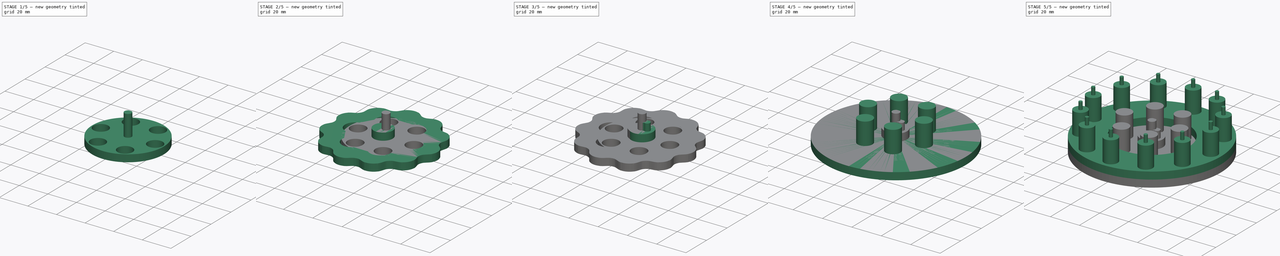
[diagram: build sequence overview — one tinted view per stage of 5, left to right]
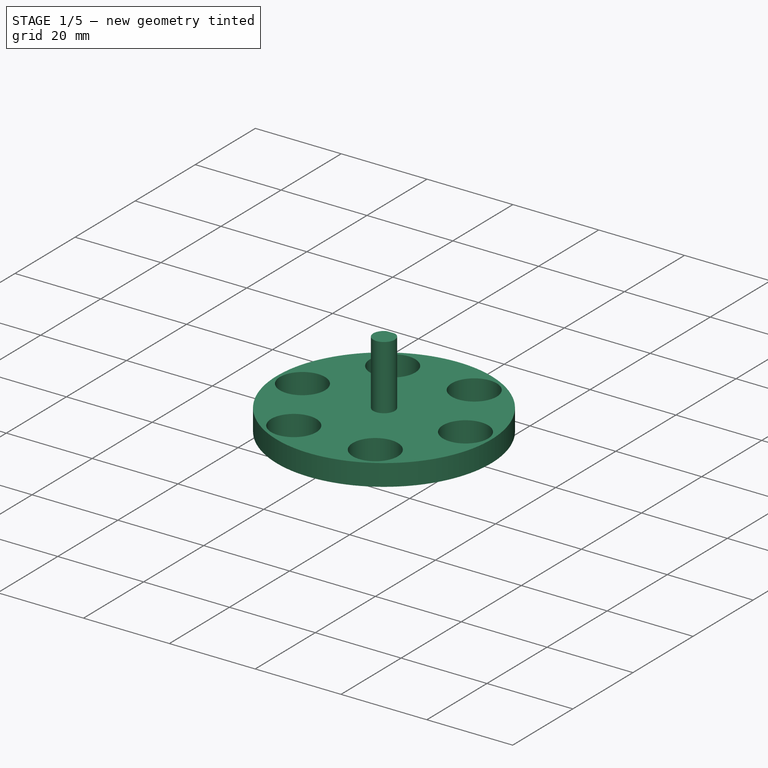
[diagram: stage 1 of 5 — iso view after this stage's code; geometry added in this stage tinted green]
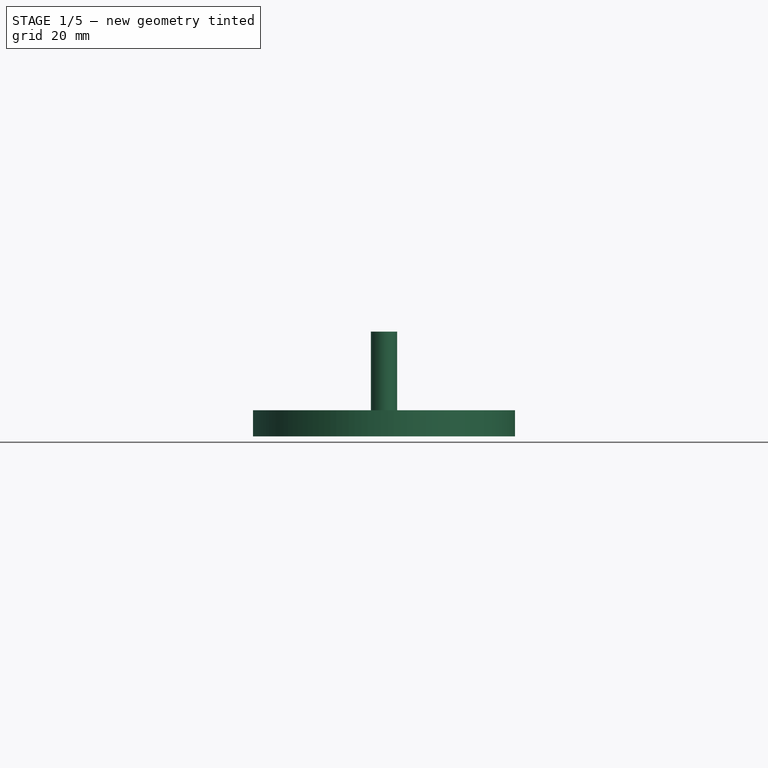
[diagram: stage 1 of 5 — front view after this stage's code; geometry added in this stage tinted green]
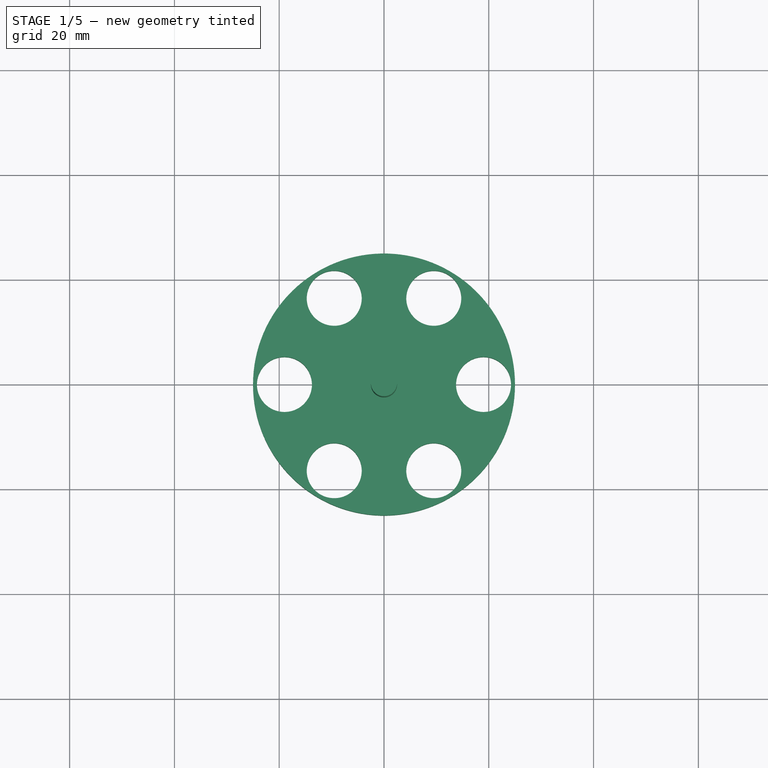
[diagram: stage 1 of 5 — top view after this stage's code; geometry added in this stage tinted green]
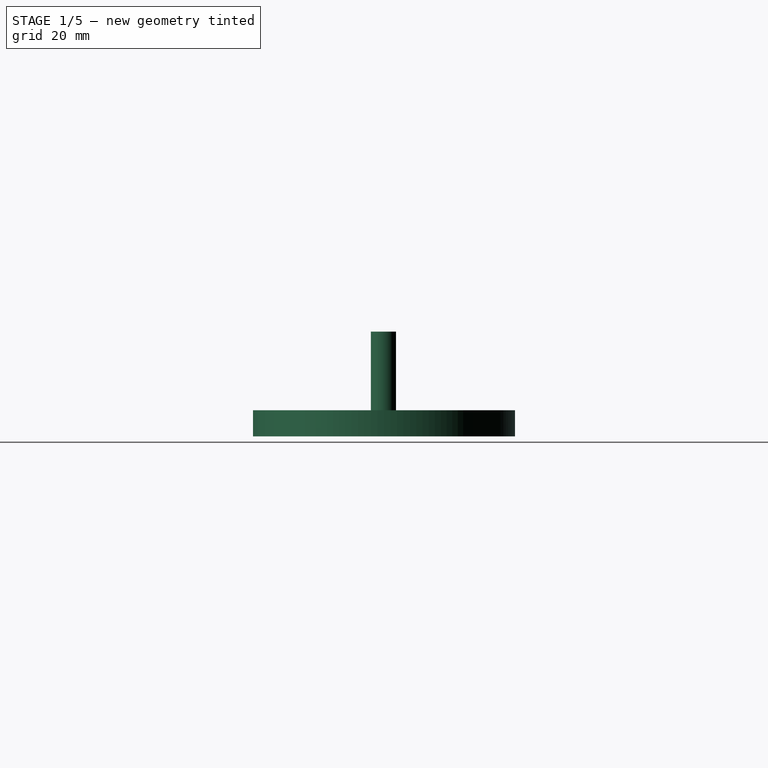
[diagram: stage 1 of 5 — right view after this stage's code; geometry added in this stage tinted green]
FCSTD DOCUMENT  (FreeCAD 0.20R28723 (Git))
Label: CycloidalDrive
License: All rights reserved
LicenseURL: http://en.wikipedia.org/wiki/All_rights_reserved
objects: Sketcher::SketchObject×21, PartDesign::Pad×16, PartDesign::Body×8, PartDesign::Pocket×5, PartDesign::PolarPattern×3, Part::FeaturePython×1
note: 75 computed .brp shape members not serialized (recipe doc carries the construction recipe); baked Part::Feature solids carry a one-line shape summary decoded from their .brp

FEATURE [PartDesign::Body] cycloidalDisk2
  Group = -> [cycloid002Sketch,cycloid002Pad]
  Origin = -> Origin005
  Placement = pos=(0,0,15) rot=(0,0,1;0rad)
  Tip = -> cycloid002Pad
FEATURE [Sketcher::SketchObject] key1Sketch
  FullyConstrained = true
  MapMode = 5
  Support = -> [XY_Plane006]
  sketch-geometry (1):
    g0: Circle CenterX=2 CenterY=0 CenterZ=0 NormalX=0 NormalY=0 NormalZ=1 AngleXU=0 Radius=6.5
  constraints (3):
    c: DistanceX(g0,g-1) = -2
    c: PointOnObject(g0,g-1)
    c: Diameter(g0) = 13  'Key1'
FEATURE [PartDesign::Pad] keyPadPad
  Direction = (0,0,1)
  Length = 5
  Length2 = 10
  Profile = -> key1Sketch
  Type = 0
FEATURE [PartDesign::Body] eccentricKey
  Group = -> [key1Sketch,keyPadPad,key2Sketch,keyPadPad001,Pin1Sketch001,Pin1Pocket,Pin2Sketch001,Pin2Pocket]
  Origin = -> Origin006
  Placement = pos=(0,0,10) rot=(0,0,1;0rad)
  Tip = -> Pin2Pocket
FEATURE [Sketcher::SketchObject] OutputShaftBaseSketch
  FullyConstrained = true
  MapMode = 5
  Support = -> [XY_Plane007]
  sketch-geometry (1):
    g0: Circle CenterX=0 CenterY=0 CenterZ=0 NormalX=0 NormalY=0 NormalZ=1 AngleXU=0 Radius=25
  constraints (2):
    c: Coincident(g0,g-1)
    c: Diameter(g0) = 50  'Base'
FEATURE [PartDesign::Pad] Pad005
  Direction = (0,0,1)
  Length = 5
  Length2 = 10
  Profile = -> OutputShaftBaseSketch
  Type = 0
FEATURE [Sketcher::SketchObject] holesSketch
  FullyConstrained = true
  MapMode = 5
  Support = -> [XY_Plane007]
  sketch-geometry (1):
    g0: Circle CenterX=-19 CenterY=0 CenterZ=0 NormalX=0 NormalY=0 NormalZ=1 AngleXU=0 Radius=5.25
  constraints (3):
    c: DistanceX(g0,g-1) = 19
    c: PointOnObject(g0,g-1)
    c: Diameter(g0) = 10.5  'DriverHoles'
FEATURE [PartDesign::Pocket] Pocket
  BaseFeature = -> Pad005
  Direction = (0,0,-1)
  Length = 5
  Length2 = 5
  Profile = -> holesSketch
  Reversed = true
  Type = 0
FEATURE [Sketcher::SketchObject] InputKeySketch001
  FullyConstrained = true
  MapMode = 5
  Support = -> [XY_Plane007]
  sketch-geometry (2):
    g0: ArcOfCircle CenterX=0 CenterY=0 CenterZ=0 NormalX=0 NormalY=0 NormalZ=1 AngleXU=0 Radius=2.5 StartAngle=1.97351 EndAngle=7.45127
    g1: LineSegment StartX=-0.979796 StartY=2.3 StartZ=0 EndX=0.979796 EndY=2.3 EndZ=0
  constraints (6):
    c: Coincident(g0,g-1)
    c: Radius(g0) = 2.5
    c: Coincident(g1,g0)
    c: Coincident(g1,g0)
    c: Horizontal(g1)
    c: DistanceY(g0,g1) = 2.3
FEATURE [PartDesign::Pad] Pad006
  BaseFeature = -> Pocket
  Direction = (0,0,1)
  Length = 20
  Length2 = 10
  Profile = -> InputKeySketch001
  Type = 0
FEATURE [PartDesign::PolarPattern] DriverHolePolar
  Angle = 360
  Axis = -> holesSketch [N_Axis]
  BaseFeature = -> Pad006
  Occurrences = 6
  Originals = -> [Pocket]
  Overlap = 0
FEATURE [PartDesign::Body] outputShaft
  Group = -> [OutputShaftBaseSketch,Pad005,holesSketch,Pocket,InputKeySketch001,Pad006,DriverHolePolar]
  Origin = -> Origin007
  Placement = pos=(0,0,20) rot=(0,0,1;0rad)
  Tip = -> DriverHolePolar
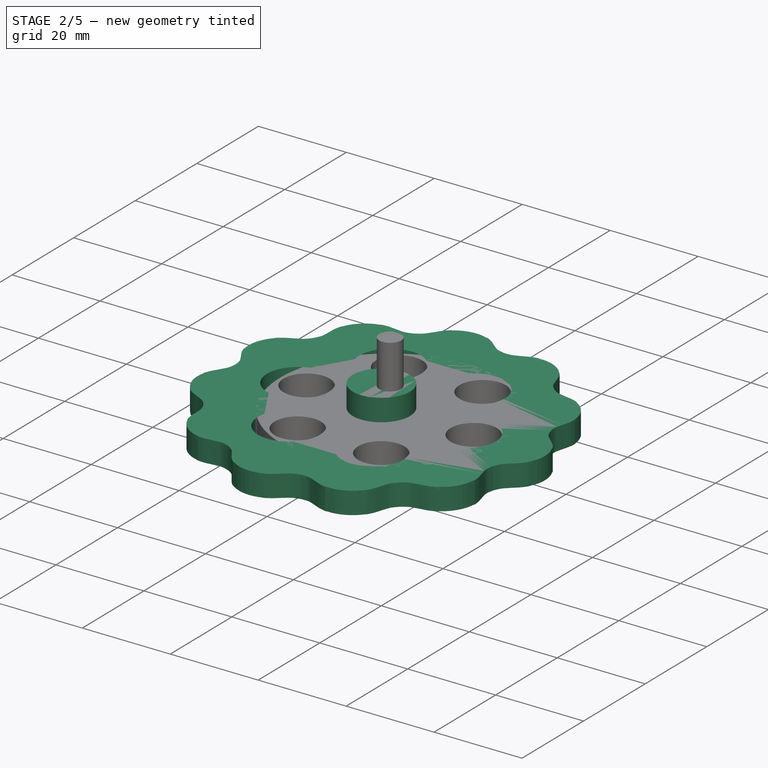
[diagram: stage 2 of 5 — iso view after this stage's code; geometry added in this stage tinted green]
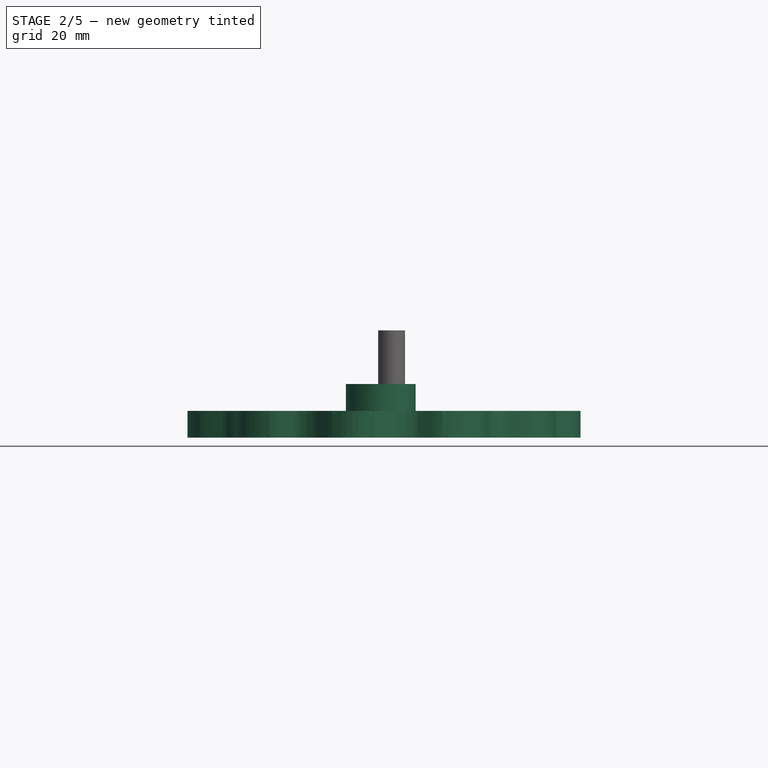
[diagram: stage 2 of 5 — front view after this stage's code; geometry added in this stage tinted green]
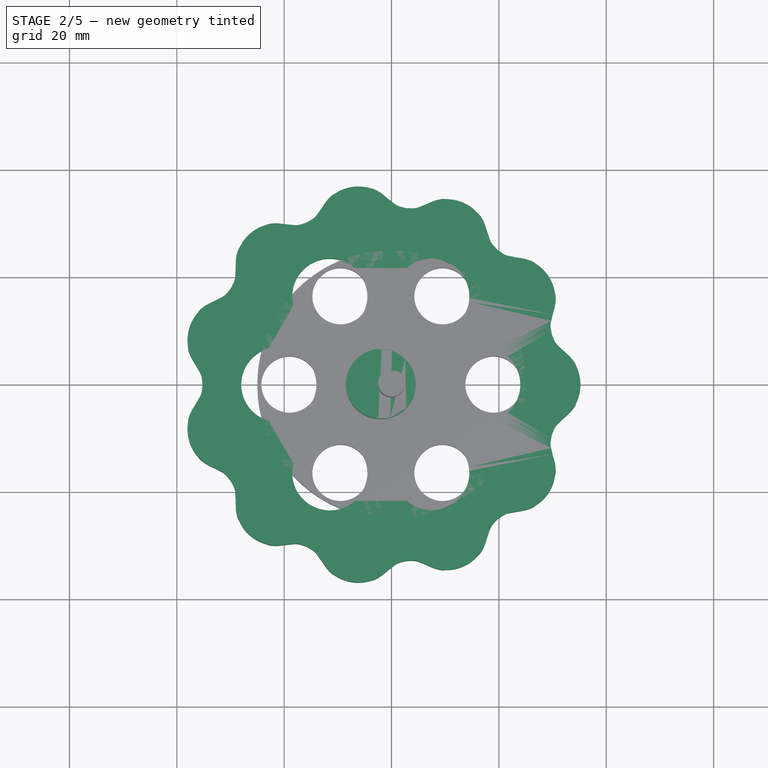
[diagram: stage 2 of 5 — top view after this stage's code; geometry added in this stage tinted green]
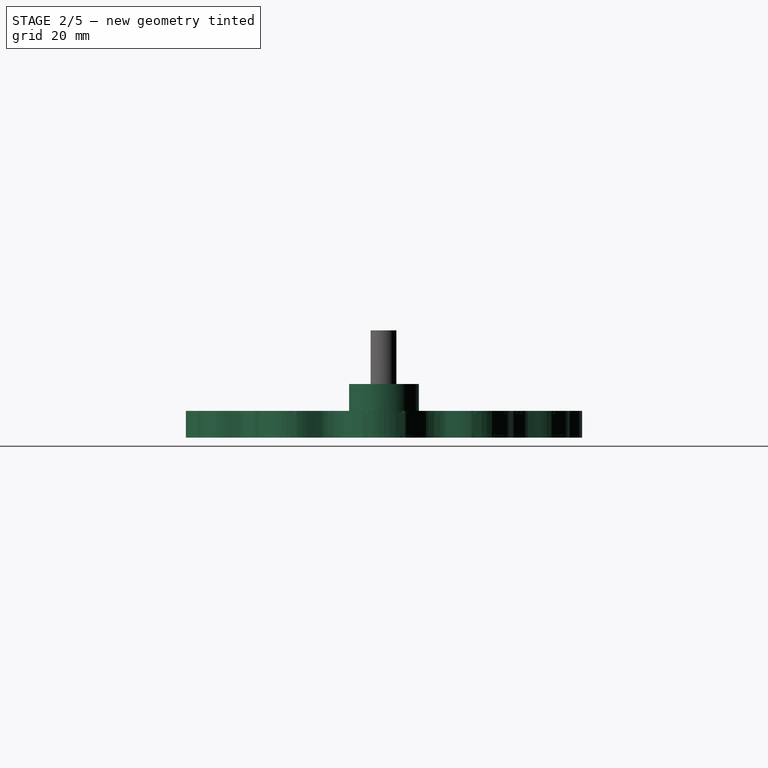
[diagram: stage 2 of 5 — right view after this stage's code; geometry added in this stage tinted green]
FEATURE [PartDesign::Body] inputShaft
  Group = -> [ShaftSketch,bearingholePad,Shaft1Sketch,shaftabovebasePad,Pin1Sketch,Pin1Pad,Pin2Sketch,Pin2Pad,InputKeySketch,InputKeyPocket]
  Origin = -> Origin003
  Tip = -> InputKeyPocket
FEATURE [Sketcher::SketchObject] cycloid001Sketch
  FullyConstrained = true
  MapMode = 5
  Support = -> [XY_Plane004]
  sketch-geometry (18):
    g0: BSplineCurve PolesCount=45 KnotsCount=43 Degree=3 IsPeriodic=0
    g1: BSplineCurve PolesCount=45 KnotsCount=43 Degree=3 IsPeriodic=0
    g2: BSplineCurve PolesCount=45 KnotsCount=43 Degree=3 IsPeriodic=0
    g3: BSplineCurve PolesCount=45 KnotsCount=43 Degree=3 IsPeriodic=0
    g4: BSplineCurve PolesCount=45 KnotsCount=43 Degree=3 IsPeriodic=0
    g5: BSplineCurve PolesCount=45 KnotsCount=43 Degree=3 IsPeriodic=0
    g6: BSplineCurve PolesCount=45 KnotsCount=43 Degree=3 IsPeriodic=0
    g7: BSplineCurve PolesCount=45 KnotsCount=43 Degree=3 IsPeriodic=0
    g8: BSplineCurve PolesCount=45 KnotsCount=43 Degree=3 IsPeriodic=0
    g9: BSplineCurve PolesCount=45 KnotsCount=43 Degree=3 IsPeriodic=0
    g10: BSplineCurve PolesCount=45 KnotsCount=43 Degree=3 IsPeriodic=0
    g11: Circle CenterX=-2 CenterY=0 CenterZ=0 NormalX=0 NormalY=0 NormalZ=1 AngleXU=0 Radius=6.75
    g12: Circle CenterX=-21 CenterY=0 CenterZ=0 NormalX=0 NormalY=0 NormalZ=1 AngleXU=0 Radius=7
    g13: Circle CenterX=-11.5 CenterY=-16.4545 CenterZ=0 NormalX=0 NormalY=0 NormalZ=1 AngleXU=0 Radius=7
    g14: Circle CenterX=7.5 CenterY=-16.4545 CenterZ=0 NormalX=0 NormalY=0 NormalZ=1 AngleXU=0 Radius=7
    g15: Circle CenterX=17 CenterY=0 CenterZ=0 NormalX=0 NormalY=0 NormalZ=1 AngleXU=0 Radius=7
    g16: Circle CenterX=7.5 CenterY=16.4545 CenterZ=0 NormalX=0 NormalY=0 NormalZ=1 AngleXU=0 Radius=7
    g17: Circle CenterX=-11.5 CenterY=16.4545 CenterZ=0 NormalX=0 NormalY=0 NormalZ=1 AngleXU=0 Radius=7
  constraints (32):
    c: Block(g0)
    c: Block(g1)
    c: Block(g2)
    c: Block(g3)
    c: Block(g4)
    c: Block(g5)
    c: Block(g6)
    c: Block(g7)
    c: Block(g8)
    c: Block(g9)
    c: Block(g10)
    c: DistanceX(g11,g-1) = 2
    c: PointOnObject(g11,g-1)
    c: Diameter(g11) = 13.5  'centerHole'
    c: DistanceX(g12,g-1) = 21
    c: PointOnObject(g12,g-1)
    c: Diameter(g12) = 14
    c: DistanceX(g13,g-1) = 11.5
    c: DistanceY(g13,g-1) = 16.4545
    c: Equal(g12,g13)
    c: DistanceX(g14,g-1) = -7.5
    c: DistanceY(g14,g-1) = 16.4545
    c: Equal(g13,g14)
    c: DistanceX(g15,g-1) = -17
    c: DistanceY(g15,g-1) = 2.3e-15
    c: Equal(g14,g15)
    c: DistanceX(g16,g-1) = -7.5
    c: DistanceY(g16,g-1) = -16.4545
    c: Equal(g15,g16)
    c: DistanceX(g17,g-1) = 11.5
    c: DistanceY(g17,g-1) = -16.4545
    c: Equal(g16,g17)
FEATURE [PartDesign::Pad] cycloid001Pad
  Direction = (0,0,1)
  Length = 5
  Length2 = 10
  Profile = -> cycloid001Sketch
  Type = 0
FEATURE [PartDesign::Body] cycloidalDisk1
  Group = -> [cycloid001Sketch,cycloid001Pad]
  Origin = -> Origin004
  Placement = pos=(0,0,10) rot=(0,0,1;3.12255rad)
  Tip = -> cycloid001Pad
FEATURE [Sketcher::SketchObject] cycloid002Sketch
  FullyConstrained = true
  MapMode = 5
  Support = -> [XY_Plane005]
  sketch-geometry (18):
    g0: BSplineCurve PolesCount=45 KnotsCount=43 Degree=3 IsPeriodic=0
    g1: BSplineCurve PolesCount=45 KnotsCount=43 Degree=3 IsPeriodic=0
    g2: BSplineCurve PolesCount=45 KnotsCount=43 Degree=3 IsPeriodic=0
    g3: BSplineCurve PolesCount=45 KnotsCount=43 Degree=3 IsPeriodic=0
    g4: BSplineCurve PolesCount=45 KnotsCount=43 Degree=3 IsPeriodic=0
    g5: BSplineCurve PolesCount=45 KnotsCount=43 Degree=3 IsPeriodic=0
    g6: BSplineCurve PolesCount=45 KnotsCount=43 Degree=3 IsPeriodic=0
    g7: BSplineCurve PolesCount=45 KnotsCount=43 Degree=3 IsPeriodic=0
    g8: BSplineCurve PolesCount=45 KnotsCount=43 Degree=3 IsPeriodic=0
    g9: BSplineCurve PolesCount=45 KnotsCount=43 Degree=3 IsPeriodic=0
    g10: BSplineCurve PolesCount=45 KnotsCount=43 Degree=3 IsPeriodic=0
    g11: Circle CenterX=-2 CenterY=0 CenterZ=0 NormalX=0 NormalY=0 NormalZ=1 AngleXU=0 Radius=6.75
    g12: Circle CenterX=-21 CenterY=0 CenterZ=0 NormalX=0 NormalY=0 NormalZ=1 AngleXU=0 Radius=7
    g13: Circle CenterX=-11.5 CenterY=-16.4545 CenterZ=0 NormalX=0 NormalY=0 NormalZ=1 AngleXU=0 Radius=7
    g14: Circle CenterX=7.5 CenterY=-16.4545 CenterZ=0 NormalX=0 NormalY=0 NormalZ=1 AngleXU=0 Radius=7
    g15: Circle CenterX=17 CenterY=0 CenterZ=0 NormalX=0 NormalY=0 NormalZ=1 AngleXU=0 Radius=7
    g16: Circle CenterX=7.5 CenterY=16.4545 CenterZ=0 NormalX=0 NormalY=0 NormalZ=1 AngleXU=0 Radius=7
    g17: Circle CenterX=-11.5 CenterY=16.4545 CenterZ=0 NormalX=0 NormalY=0 NormalZ=1 AngleXU=0 Radius=7
  constraints (32):
    c: Block(g0)
    c: Block(g1)
    c: Block(g2)
    c: Block(g3)
    c: Block(g4)
    c: Block(g5)
    c: Block(g6)
    c: Block(g7)
    c: Block(g8)
    c: Block(g9)
    c: Block(g10)
    c: DistanceX(g11,g-1) = 2
    c: PointOnObject(g11,g-1)
    c: Diameter(g11) = 13.5  'centerHole'
    c: DistanceX(g12,g-1) = 21
    c: PointOnObject(g12,g-1)
    c: Diameter(g12) = 14
    c: DistanceX(g13,g-1) = 11.5
    c: DistanceY(g13,g-1) = 16.4545
    c: Equal(g12,g13)
    c: DistanceX(g14,g-1) = -7.5
    c: DistanceY(g14,g-1) = 16.4545
    c: Equal(g13,g14)
    c: DistanceX(g15,g-1) = -17
    c: DistanceY(g15,g-1) = 2.3e-15
    c: Equal(g14,g15)
    c: DistanceX(g16,g-1) = -7.5
    c: DistanceY(g16,g-1) = -16.4545
    c: Equal(g15,g16)
    c: DistanceX(g17,g-1) = 11.5
    c: DistanceY(g17,g-1) = -16.4545
    c: Equal(g16,g17)
FEATURE [PartDesign::Pad] cycloid002Pad
  Direction = (0,0,1)
  Length = 5
  Length2 = 10
  Profile = -> cycloid002Sketch
  Type = 0
FEATURE [Sketcher::SketchObject] key2Sketch
  AttachmentOffset = pos=(0,0,5) rot=(0,0,1;0rad)
  FullyConstrained = true
  MapMode = 5
  Placement = pos=(0,0,5) rot=(0,0,1;0rad)
  Support = -> [XY_Plane006]
  sketch-geometry (1):
    g0: Circle CenterX=-2 CenterY=0 CenterZ=0 NormalX=0 NormalY=0 NormalZ=1 AngleXU=0 Radius=6.5
  constraints (3):
    c: DistanceX(g0,g-1) = 2
    c: PointOnObject(g0,g-1)
    c: Diameter(g0) = 13  'Key1'
FEATURE [PartDesign::Pad] keyPadPad001
  BaseFeature = -> keyPadPad
  Direction = (0,0,1)
  Length = 5
  Length2 = 10
  Profile = -> key2Sketch
  Type = 0
FEATURE [Sketcher::SketchObject] Pin1Sketch001
  AttachmentOffset = pos=(0,0,5) rot=(0,0,1;0rad)
  FullyConstrained = true
  MapMode = 5
  Placement = pos=(0,0,5) rot=(0,0,1;0rad)
  Support = -> [XY_Plane006]
  sketch-geometry (1):
    g0: Circle CenterX=1.75 CenterY=0 CenterZ=0 NormalX=0 NormalY=0 NormalZ=1 AngleXU=0 Radius=2
  constraints (3):
    c: DistanceX(g0,g-1) = -1.75
    c: PointOnObject(g0,g-1)
    c: Diameter(g0) = 4  'pin1'
FEATURE [PartDesign::Pocket] Pin1Pocket
  BaseFeature = -> keyPadPad001
  Direction = (0,0,-1)
  Length = 10
  Length2 = 5
  Profile = -> Pin1Sketch001
  Type = 0
FEATURE [Sketcher::SketchObject] Pin2Sketch001
  AttachmentOffset = pos=(0,0,5) rot=(0,0,1;0rad)
  FullyConstrained = true
  MapMode = 5
  Placement = pos=(0,0,5) rot=(0,0,1;0rad)
  Support = -> [XY_Plane006]
  sketch-geometry (1):
    g0: Circle CenterX=3.5 CenterY=0 CenterZ=0 NormalX=0 NormalY=0 NormalZ=1 AngleXU=0 Radius=2
  constraints (3):
    c: DistanceX(g0,g-1) = -3.5
    c: PointOnObject(g0,g-1)
    c: Diameter(g0) = 4  'pin2'
FEATURE [PartDesign::Pocket] Pin2Pocket
  BaseFeature = -> Pin1Pocket
  Direction = (0,0,-1)
  Length = 10
  Length2 = 5
  Profile = -> Pin2Sketch001
  Type = 0
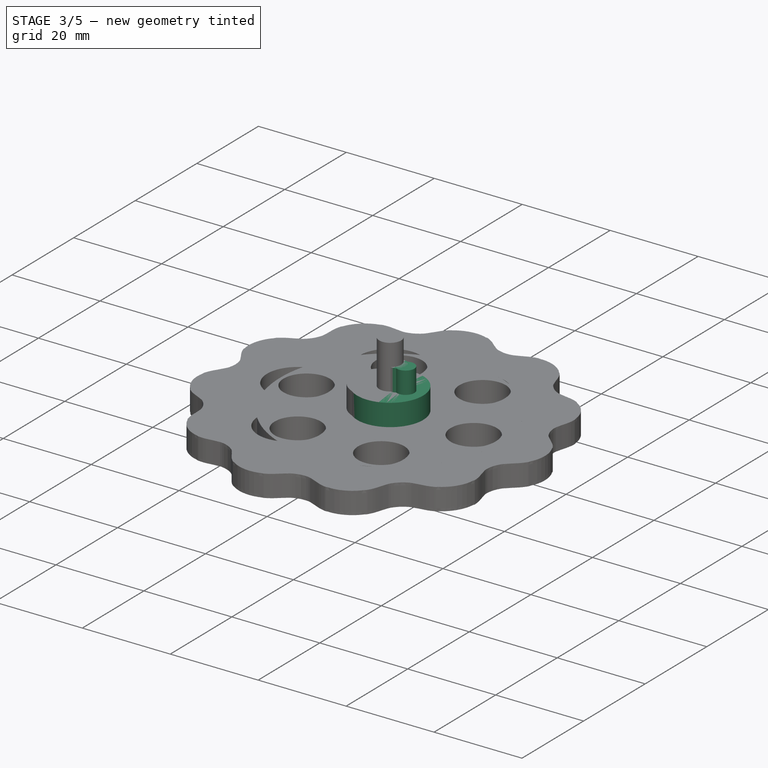
[diagram: stage 3 of 5 — iso view after this stage's code; geometry added in this stage tinted green]
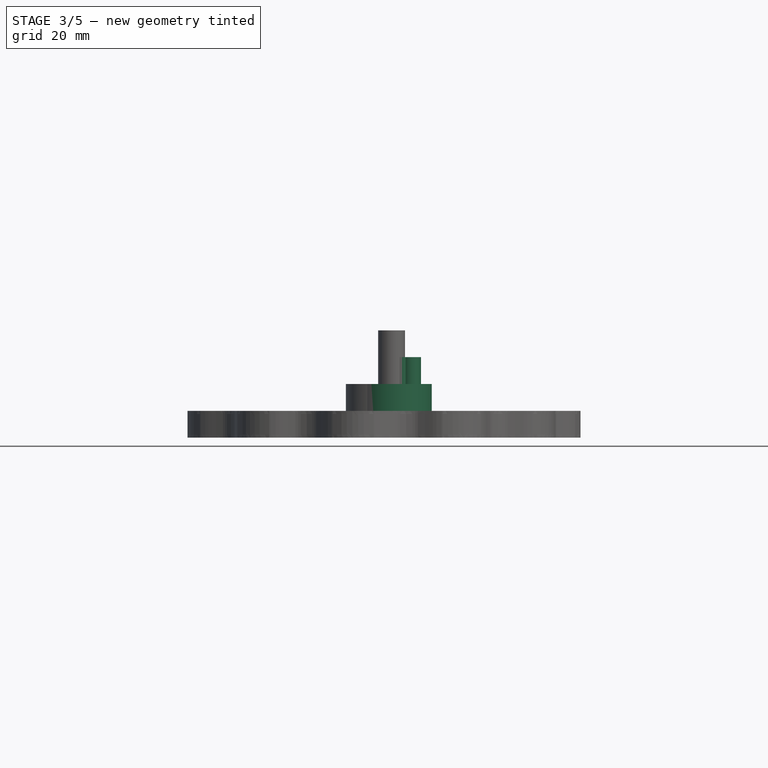
[diagram: stage 3 of 5 — front view after this stage's code; geometry added in this stage tinted green]
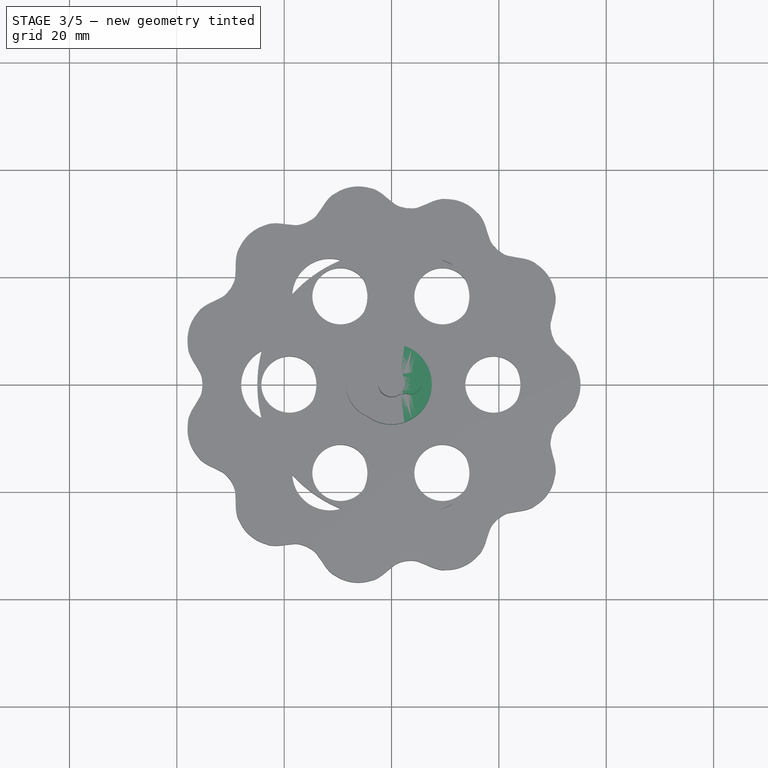
[diagram: stage 3 of 5 — top view after this stage's code; geometry added in this stage tinted green]
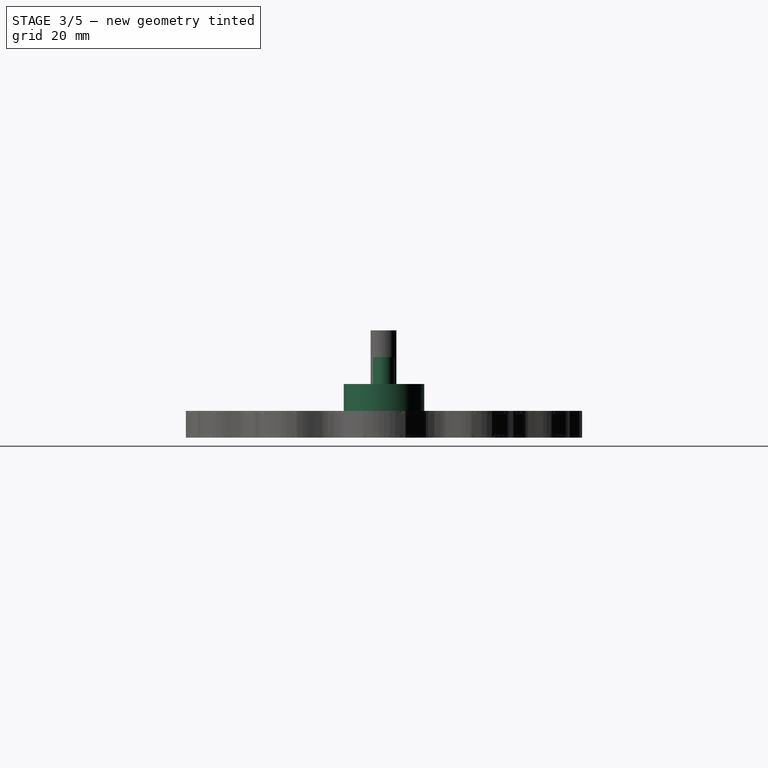
[diagram: stage 3 of 5 — right view after this stage's code; geometry added in this stage tinted green]
FEATURE [PartDesign::Body] driverDisk
  Group = -> [DriverDiskBaseSketch001,Pad,DriverShaftSketch,Pad004,DriverDiskPolar]
  Origin = -> Origin002
  Placement = pos=(0,0,5) rot=(0,0,1;0rad)
  Tip = -> DriverDiskPolar
FEATURE [Sketcher::SketchObject] ShaftSketch
  FullyConstrained = true
  MapMode = 5
  Support = -> [XY_Plane003]
  sketch-geometry (1):
    g0: Circle CenterX=0 CenterY=0 CenterZ=0 NormalX=0 NormalY=0 NormalZ=1 AngleXU=0 Radius=6.5
  constraints (2):
    c: Coincident(g0,g-1)
    c: Diameter(g0) = 13  'Shaft'
FEATURE [PartDesign::Pad] bearingholePad
  Direction = (0,0,1)
  Length = 5
  Length2 = 10
  Profile = -> ShaftSketch
  Type = 0
FEATURE [Sketcher::SketchObject] Shaft1Sketch
  AttachmentOffset = pos=(0,0,5) rot=(0,0,1;0rad)
  FullyConstrained = true
  MapMode = 5
  Placement = pos=(0,0,5) rot=(0,0,1;0rad)
  Support = -> [XY_Plane003]
  sketch-geometry (1):
    g0: Circle CenterX=0 CenterY=0 CenterZ=0 NormalX=0 NormalY=0 NormalZ=1 AngleXU=0 Radius=7.5
  constraints (2):
    c: Coincident(g0,g-1)
    c: Diameter(g0) = 15  'InnerShaft'
FEATURE [PartDesign::Pad] shaftabovebasePad
  BaseFeature = -> bearingholePad
  Direction = (0,0,1)
  Length = 5
  Length2 = 10
  Profile = -> Shaft1Sketch
  Type = 0
FEATURE [Sketcher::SketchObject] Pin1Sketch
  AttachmentOffset = pos=(0,0,5) rot=(0,0,1;0rad)
  FullyConstrained = true
  MapMode = 5
  Placement = pos=(0,0,5) rot=(0,0,1;0rad)
  Support = -> [XY_Plane003]
  sketch-geometry (1):
    g0: Circle CenterX=1.75 CenterY=0 CenterZ=0 NormalX=0 NormalY=0 NormalZ=1 AngleXU=0 Radius=2
  constraints (3):
    c: DistanceX(g0,g-1) = -1.75
    c: PointOnObject(g0,g-1)
    c: Diameter(g0) = 4  'pin1'
FEATURE [PartDesign::Pad] Pin1Pad
  BaseFeature = -> shaftabovebasePad
  Direction = (0,0,1)
  Length = 10
  Length2 = 10
  Profile = -> Pin1Sketch
  Type = 0
FEATURE [Sketcher::SketchObject] Pin2Sketch
  AttachmentOffset = pos=(0,0,5) rot=(0,0,1;0rad)
  FullyConstrained = true
  MapMode = 5
  Placement = pos=(0,0,5) rot=(0,0,1;0rad)
  Support = -> [XY_Plane003]
  sketch-geometry (1):
    g0: Circle CenterX=3.5 CenterY=0 CenterZ=0 NormalX=0 NormalY=0 NormalZ=1 AngleXU=0 Radius=2
  constraints (3):
    c: DistanceX(g0,g-1) = -3.5
    c: PointOnObject(g0,g-1)
    c: Diameter(g0) = 4  'pin2'
FEATURE [PartDesign::Pad] Pin2Pad
  BaseFeature = -> Pin1Pad
  Direction = (0,0,1)
  Length = 10
  Length2 = 10
  Profile = -> Pin2Sketch
  Type = 0
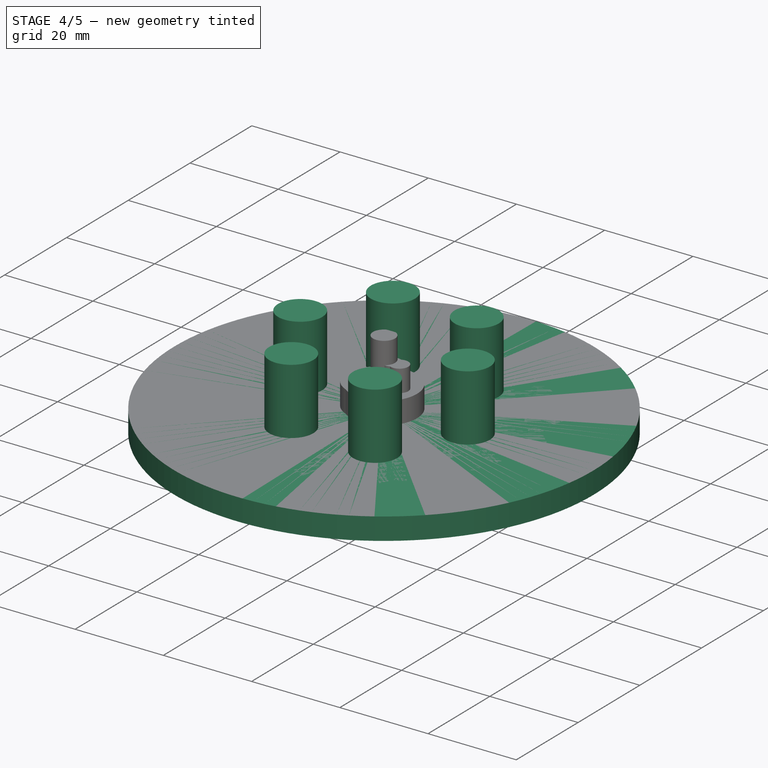
[diagram: stage 4 of 5 — iso view after this stage's code; geometry added in this stage tinted green]
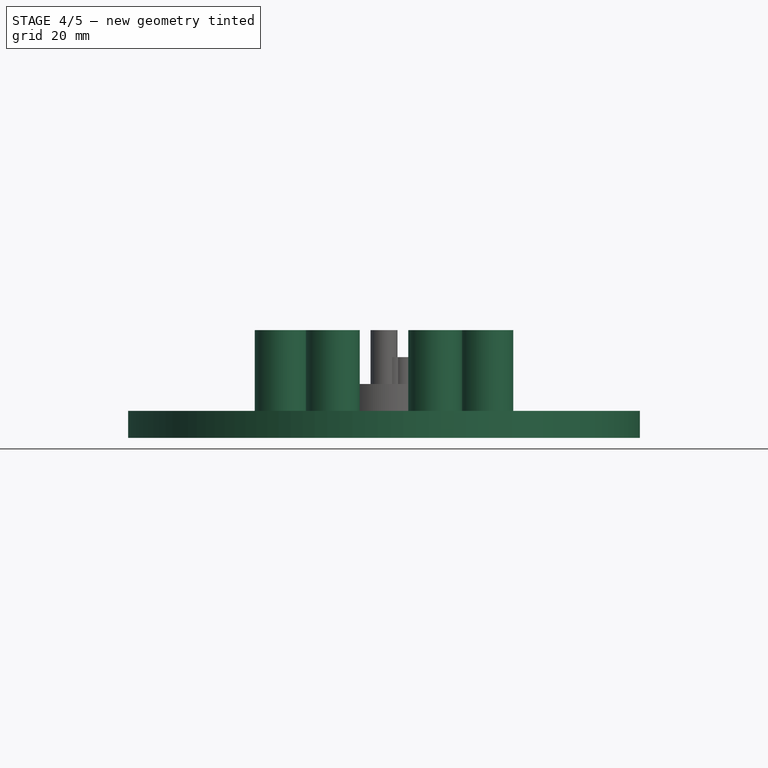
[diagram: stage 4 of 5 — front view after this stage's code; geometry added in this stage tinted green]
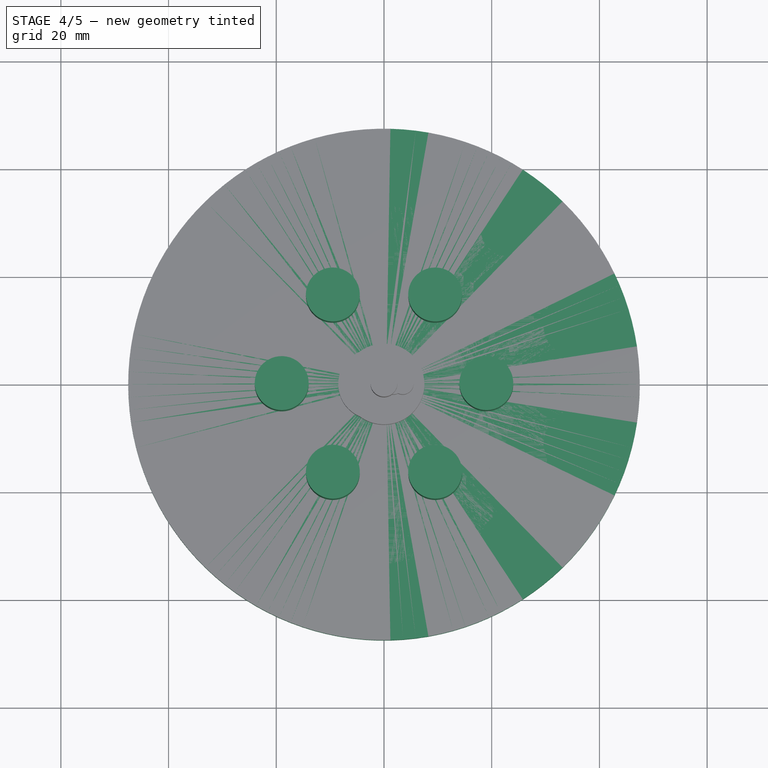
[diagram: stage 4 of 5 — top view after this stage's code; geometry added in this stage tinted green]
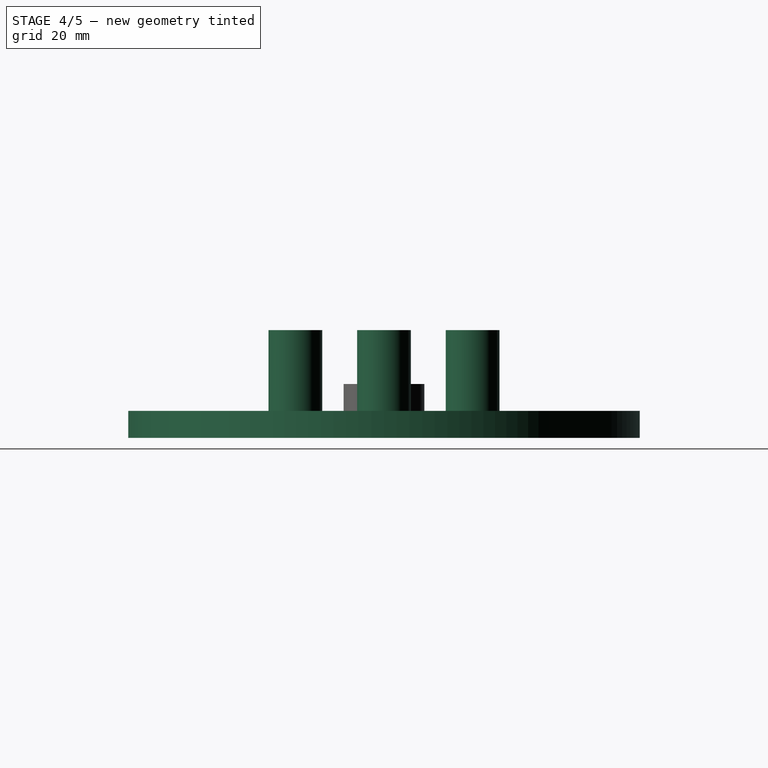
[diagram: stage 4 of 5 — right view after this stage's code; geometry added in this stage tinted green]
FEATURE [PartDesign::Body] gear_box
  Origin = -> Origin
FEATURE [Part::FeaturePython] GearBoxParameters  # WARN: FeaturePython — macro-defined, semantics opaque (R4)
  Diameter = 95
  Height = 20
  Max_Diameter = 73.1555
  Min_Diameter = 67.8178
  Version = Mar 5,2022
  base_height = 10
  clearance = 0.5
  disk_height = 5
  driver_disk_diameter = 50
  driver_disk_hole_count = 6
  driver_hole_diameter = 10
  eccentricity = 2
  key_diameter = 5
  key_flat_diameter = 4.8
  line_segment_count = 42
  pin_circle_diameter = 80
  pressure_angle_limit = 50
  pressure_angle_offset = 0.1
  roller_diameter = 9.4
  shaft_diameter = 13
  tooth_count = 11
  tooth_pitch = 4
FEATURE [Sketcher::SketchObject] DriverDiskBaseSketch
  FullyConstrained = true
  MapMode = 5
  Support = -> [XY_Plane001]
  sketch-geometry (2):
    g0: Circle CenterX=0 CenterY=0 CenterZ=0 NormalX=0 NormalY=0 NormalZ=1 AngleXU=0 Radius=6.75
    g1: Circle CenterX=0 CenterY=0 CenterZ=0 NormalX=0 NormalY=0 NormalZ=1 AngleXU=0 Radius=47.5
  constraints (4):
    c: Coincident(g0,g-1)
    c: Diameter(g0) = 13.5  'ShaftHole'
    c: Coincident(g1,g-1)
    c: Diameter(g1) = 95  'Diameter'
FEATURE [PartDesign::Pad] centerPad
  Direction = (0,0,1)
  Length = 5
  Length2 = 10
  Profile = -> DriverDiskBaseSketch
  Type = 0
FEATURE [PartDesign::Body] pinDisk
  Group = -> [DriverDiskBaseSketch,centerPad,Sketch,outsidePad,pinMaleSketch,pinMalePad,rollerSketch,RollerPad,pinSketchFemaleSketch,pinJoinerPocket,pinPolar]
  Origin = -> Origin001
  Tip = -> pinPolar
FEATURE [Sketcher::SketchObject] DriverDiskBaseSketch001
  FullyConstrained = true
  MapMode = 5
  Support = -> [XY_Plane002]
  sketch-geometry (2):
    g0: Circle CenterX=0 CenterY=0 CenterZ=0 NormalX=0 NormalY=0 NormalZ=1 AngleXU=0 Radius=25
    g1: Circle CenterX=0 CenterY=0 CenterZ=0 NormalX=0 NormalY=0 NormalZ=1 AngleXU=0 Radius=7.625
  constraints (4):
    c: Coincident(g0,g-1)
    c: Diameter(g0) = 50  'DriverDiameter'
    c: Coincident(g1,g-1)
    c: Diameter(g1) = 15.25  'ShaftHole'
FEATURE [PartDesign::Pad] Pad
  Direction = (0,0,1)
  Length = 5
  Length2 = 10
  Profile = -> DriverDiskBaseSketch001
  Type = 0
FEATURE [Sketcher::SketchObject] DriverShaftSketch
  FullyConstrained = true
  MapMode = 5
  Support = -> [XY_Plane002]
  sketch-geometry (1):
    g0: Circle CenterX=-19 CenterY=0 CenterZ=0 NormalX=0 NormalY=0 NormalZ=1 AngleXU=0 Radius=5
  constraints (3):
    c: DistanceX(g0,g-1) = 19
    c: PointOnObject(g0,g-1)
    c: Diameter(g0) = 10  'DriverShaft'
FEATURE [PartDesign::Pad] Pad004
  BaseFeature = -> Pad
  Direction = (0,0,1)
  Length = 20
  Length2 = 10
  Profile = -> DriverShaftSketch
  Type = 0
FEATURE [PartDesign::PolarPattern] DriverDiskPolar
  Angle = 360
  Axis = -> DriverShaftSketch [N_Axis]
  BaseFeature = -> Pad004
  Occurrences = 6
  Originals = -> [Pad004]
  Overlap = 0
FEATURE [Sketcher::SketchObject] InputKeySketch
  FullyConstrained = true
  MapMode = 5
  Support = -> [XY_Plane003]
  sketch-geometry (2):
    g0: ArcOfCircle CenterX=0 CenterY=0 CenterZ=0 NormalX=0 NormalY=0 NormalZ=1 AngleXU=0 Radius=2.5 StartAngle=1.97351 EndAngle=7.45127
    g1: LineSegment StartX=-0.979796 StartY=2.3 StartZ=0 EndX=0.979796 EndY=2.3 EndZ=0
  constraints (6):
    c: Coincident(g0,g-1)
    c: Radius(g0) = 2.5
    c: Coincident(g1,g0)
    c: Coincident(g1,g0)
    c: Horizontal(g1)
    c: DistanceY(g0,g1) = 2.3
FEATURE [PartDesign::Pocket] InputKeyPocket
  BaseFeature = -> Pin2Pad
  Direction = (0,0,-1)
  Length = 15
  Length2 = 5
  Profile = -> InputKeySketch
  Reversed = true
  Type = 0
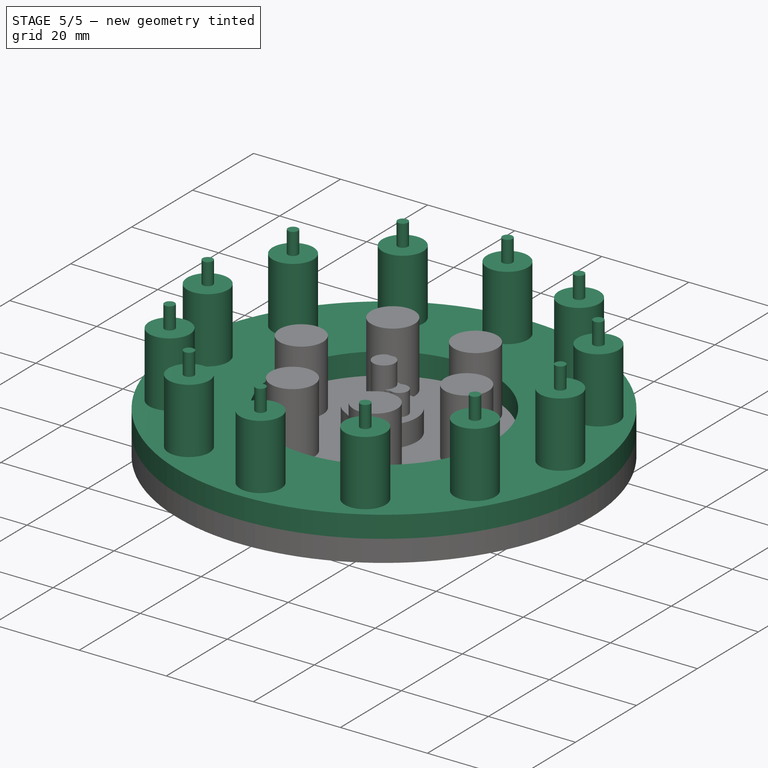
[diagram: stage 5 of 5 — iso view after this stage's code; geometry added in this stage tinted green]
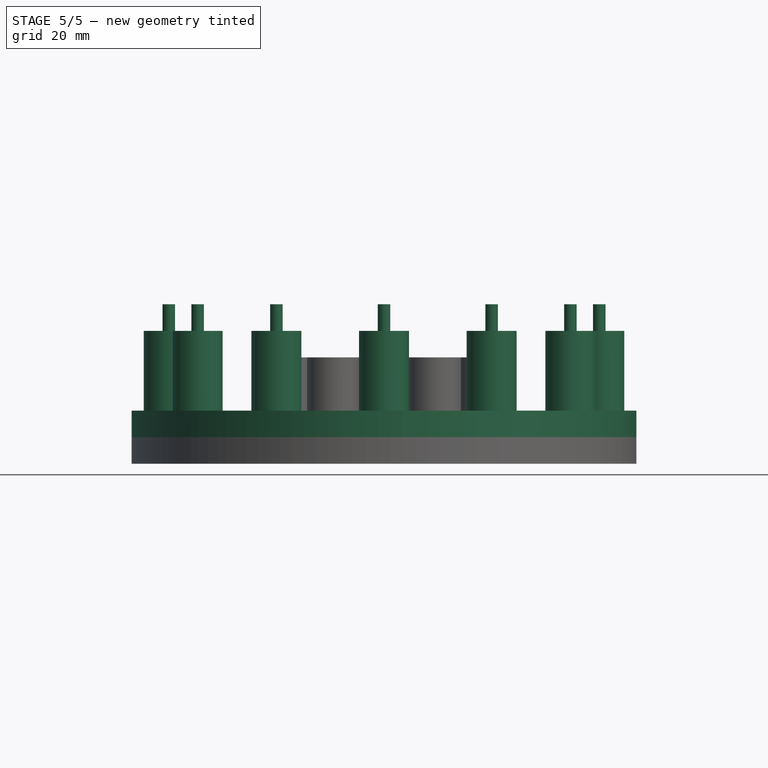
[diagram: stage 5 of 5 — front view after this stage's code; geometry added in this stage tinted green]
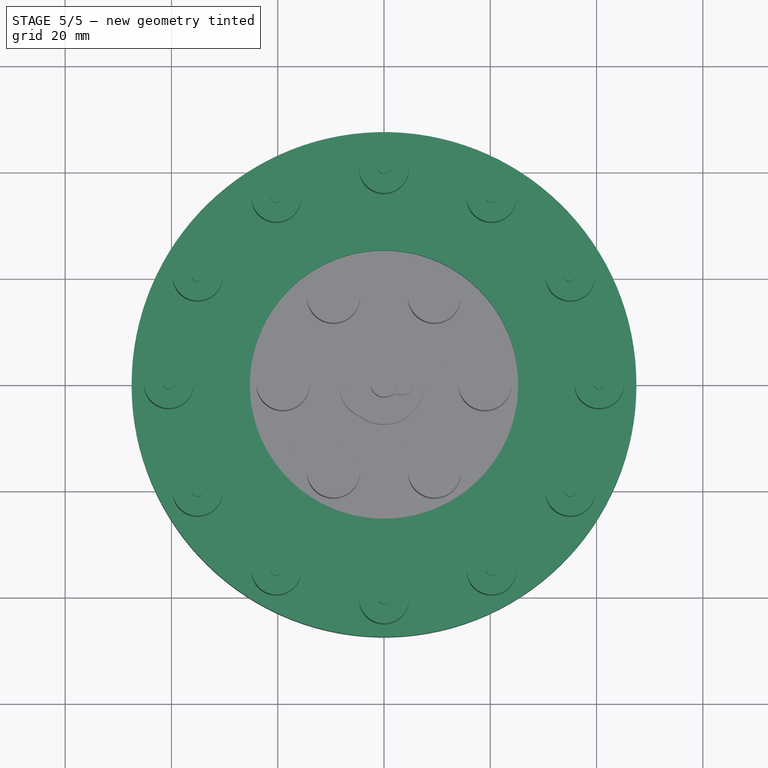
[diagram: stage 5 of 5 — top view after this stage's code; geometry added in this stage tinted green]
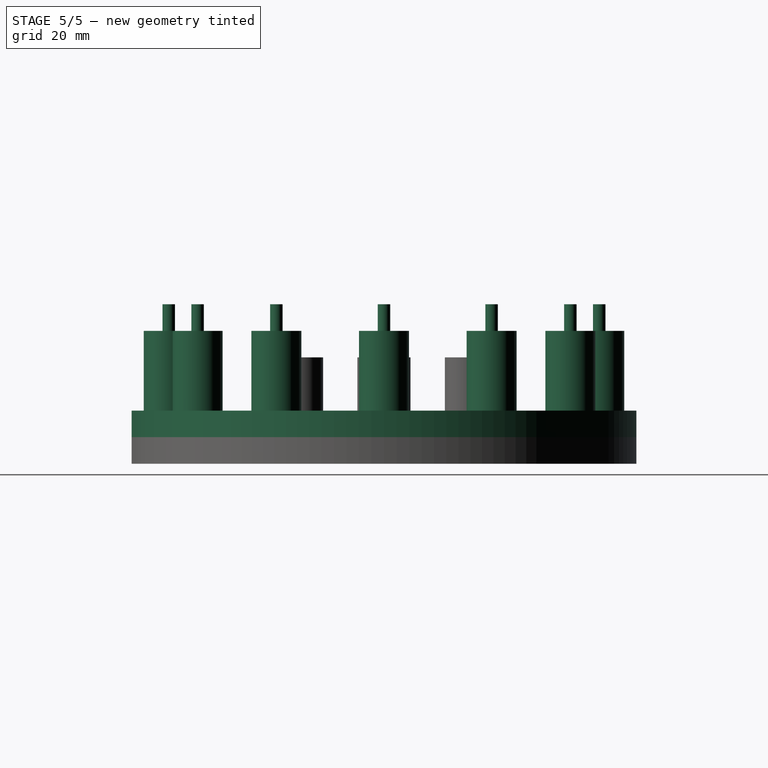
[diagram: stage 5 of 5 — right view after this stage's code; geometry added in this stage tinted green]
FEATURE [Sketcher::SketchObject] Sketch
  FullyConstrained = true
  MapMode = 5
  Support = -> [XY_Plane001]
  sketch-geometry (2):
    g0: Circle CenterX=0 CenterY=0 CenterZ=0 NormalX=0 NormalY=0 NormalZ=1 AngleXU=0 Radius=47.5
    g1: Circle CenterX=0 CenterY=0 CenterZ=0 NormalX=0 NormalY=0 NormalZ=1 AngleXU=0 Radius=25.25
  constraints (4):
    c: Coincident(g0,g-1)
    c: Diameter(g0) = 95  'Diameter'
    c: Coincident(g1,g-1)
    c: Diameter(g1) = 50.5  'driver_disk_diameter'
FEATURE [PartDesign::Pad] outsidePad
  BaseFeature = -> centerPad
  Direction = (0,0,1)
  Length = 10
  Length2 = 10
  Profile = -> Sketch
  Type = 0
FEATURE [Sketcher::SketchObject] pinMaleSketch
  FullyConstrained = true
  MapMode = 5
  Support = -> [XY_Plane001]
  sketch-geometry (1):
    g0: Circle CenterX=-40.5 CenterY=0 CenterZ=0 NormalX=0 NormalY=0 NormalZ=1 AngleXU=0 Radius=1.175
  constraints (3):
    c: DistanceX(g0,g-1) = 40.5
    c: PointOnObject(g0,g-1)
    c: Diameter(g0) = 2.35  'pin_circle_diameter_male'
FEATURE [PartDesign::Pad] pinMalePad
  BaseFeature = -> outsidePad
  Direction = (0,0,1)
  Length = 30
  Length2 = 10
  Profile = -> pinMaleSketch
  Type = 0
FEATURE [Sketcher::SketchObject] rollerSketch
  FullyConstrained = true
  MapMode = 5
  Support = -> [XY_Plane001]
  sketch-geometry (1):
    g0: Circle CenterX=-40.5 CenterY=0 CenterZ=0 NormalX=0 NormalY=0 NormalZ=1 AngleXU=0 Radius=4.7
  constraints (3):
    c: DistanceX(g0,g-1) = 40.5
    c: PointOnObject(g0,g-1)
    c: Diameter(g0) = 9.4  'pin_circle_diameter_roller'
FEATURE [PartDesign::Pad] RollerPad
  BaseFeature = -> pinMalePad
  Direction = (0,0,1)
  Length = 25
  Length2 = 10
  Profile = -> rollerSketch
  Type = 0
FEATURE [Sketcher::SketchObject] pinSketchFemaleSketch
  FullyConstrained = true
  MapMode = 5
  Support = -> [XY_Plane001]
  sketch-geometry (1):
    g0: Circle CenterX=-40.5 CenterY=0 CenterZ=0 NormalX=0 NormalY=0 NormalZ=1 AngleXU=0 Radius=1.425
  constraints (3):
    c: DistanceX(g0,g-1) = 40.5
    c: PointOnObject(g0,g-1)
    c: Diameter(g0) = 2.85  'pin_circle_diameter_female'
FEATURE [PartDesign::Pocket] pinJoinerPocket
  BaseFeature = -> RollerPad
  Direction = (0,0,-1)
  Length = 15
  Length2 = 5
  Profile = -> pinSketchFemaleSketch
  Reversed = true
  Type = 0
FEATURE [PartDesign::PolarPattern] pinPolar
  Angle = 360
  Axis = -> pinMaleSketch [N_Axis]
  BaseFeature = -> pinJoinerPocket
  Occurrences = 12
  Originals = -> [pinMalePad,RollerPad,pinJoinerPocket]
  Overlap = 0
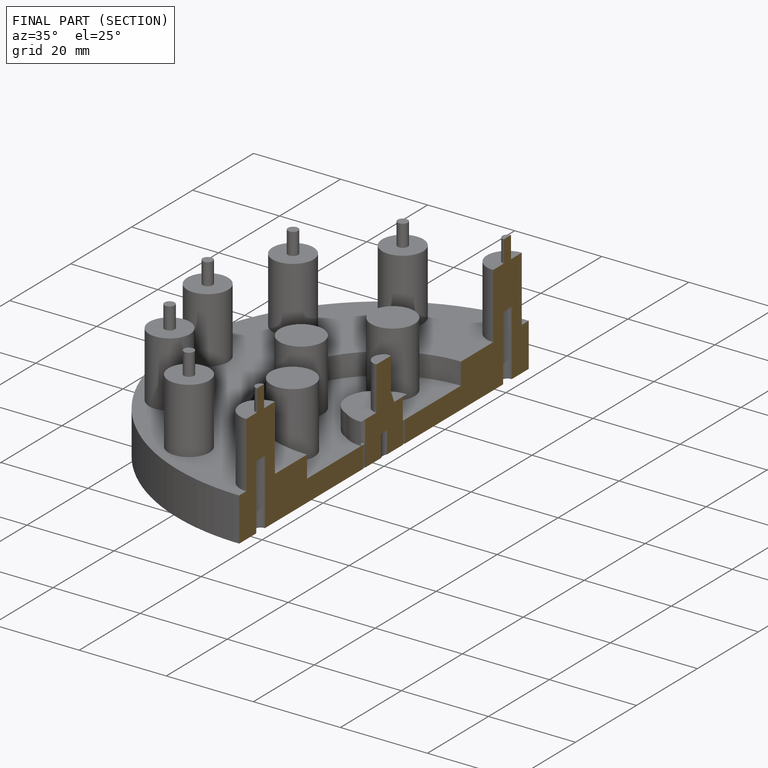
[diagram: finished part — half-section view (interior)]
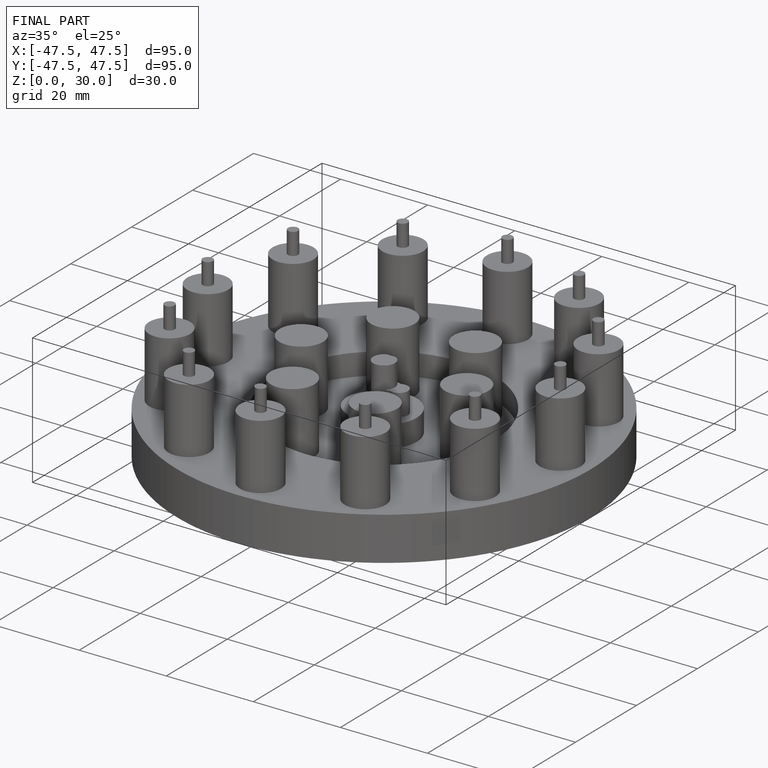
[diagram: finished part — iso view with bounding-box wireframe]
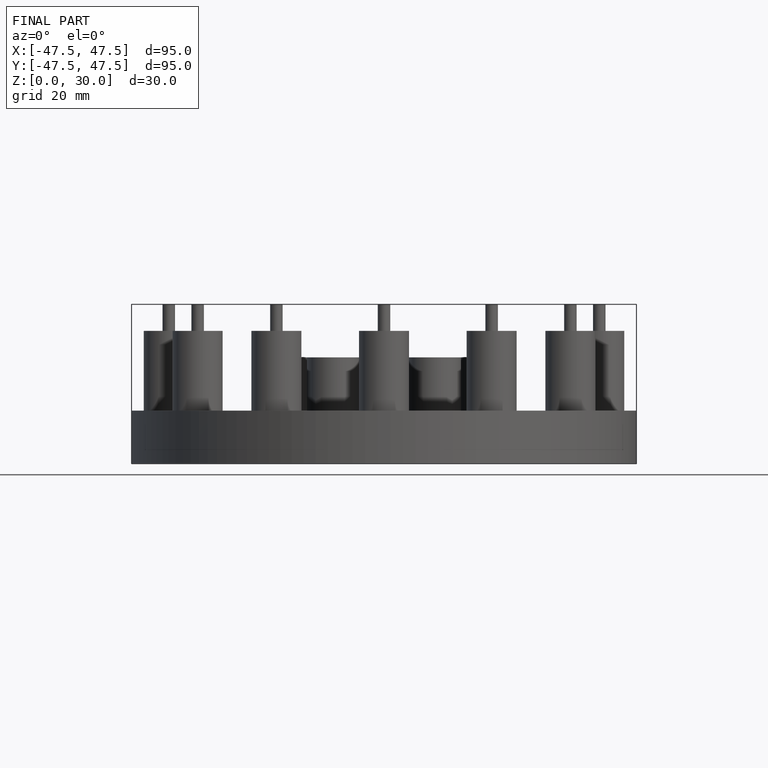
[diagram: finished part — front view with bounding-box wireframe]
